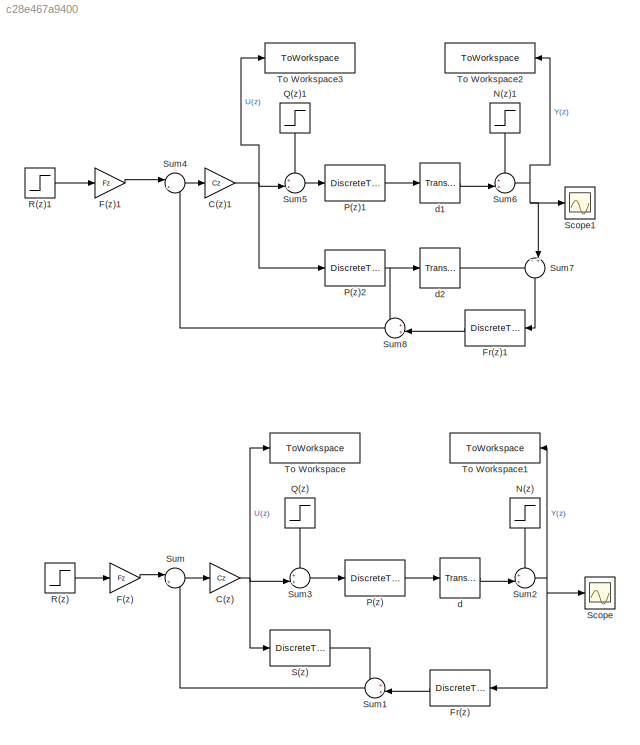
MODEL slx_c28e467a9400
KIND model
CONFIG AbsTol = auto
CONFIG EnableMultiTasking = off
CONFIG FixedStep = auto
CONFIG MaxStep = auto
CONFIG MinStep = auto
CONFIG RelTol = 1e-3
CONFIG SampleTimeConstraint = Unconstrained
CONFIG SolverName = VariableStepAuto
CONFIG StartTime = 0.0
CONFIG StopTime = tsim
BLOCK [Gain] C(z)
  Gain = Cz
  Multiplication = Matrix(K*u)
BLOCK [Gain] C(z)1
  Gain = Cz
  Multiplication = Matrix(K*u)
BLOCK [Gain] F(z)
  Gain = Fz
  Multiplication = Matrix(K*u)
BLOCK [Gain] F(z)1
  Gain = Fz
  Multiplication = Matrix(K*u)
BLOCK [DiscreteTransferFcn] Fr(z)
  Denominator = denFr
  InputPortMap = u0
  Numerator = numFr
BLOCK [DiscreteTransferFcn] Fr(z)1
  Denominator = denFr
  InputPortMap = u0
  Numerator = numFr
BLOCK [Step] N(z)
  After = -1
  NameLocation = left
  SampleTime = Ts
  Time = 600
BLOCK [Step] N(z)1
  After = -1
  NameLocation = left
  SampleTime = Ts
  Time = 600
BLOCK [DiscreteTransferFcn] P(z)
  Denominator = denGz
  InputPortMap = u0
  Numerator = numGz
BLOCK [DiscreteTransferFcn] P(z)1
  Denominator = denGz
  InputPortMap = u0
  Numerator = numGz
BLOCK [DiscreteTransferFcn] P(z)2
  Denominator = denGz
  InputPortMap = u0
  Numerator = numGz
BLOCK [Step] Q(z)
  After = -1
  NameLocation = left
  SampleTime = Ts
  Time = 200
BLOCK [Step] Q(z)1
  After = -1
  NameLocation = left
  SampleTime = Ts
  Time = 200
BLOCK [Step] R(z)
  After = 5
  SampleTime = Ts
  Time = 0
BLOCK [Step] R(z)1
  After = 5
  SampleTime = Ts
  Time = 0
BLOCK [DiscreteTransferFcn] S(z)
  Denominator = denSz
  InputPortMap = u0
  Numerator = numSz
BLOCK [Scope] Scope
  Floating = off
  NumInputPorts = 1
  ScopeSpecificationString = Simulink.scopes.TimeScopeBlockCfg('CurrentConfiguration', extmgr.ConfigurationSet(extmgr.Configuration('Core','General UI',true),extmgr.Configuration('Core','Source UI',true),extmgr.Configuration('Sources','WiredSimulink',true),extmgr.Configuration('Visuals','Time Domain',true,'SerializedDisplays',{struct('MinYLimReal','-0.73414','MaxYLimReal','6.60724','YLabelReal','','MinYLimMag','0.00000','MaxY...<+1355ch>
BLOCK [Scope] Scope1
  Floating = off
  NumInputPorts = 1
  ScopeSpecificationString = Simulink.scopes.TimeScopeBlockCfg('CurrentConfiguration', extmgr.ConfigurationSet(extmgr.Configuration('Core','General UI',true),extmgr.Configuration('Core','Source UI',true),extmgr.Configuration('Sources','WiredSimulink',true,'DataLoggingVariableName','ScopeData1'),extmgr.Configuration('Visuals','Time Domain',true,'SerializedDisplays',{struct('MinYLimReal','-0.73414','MaxYLimReal','6.60724','YLab...<+1394ch>
BLOCK [Sum] Sum
  Inputs = |+-
BLOCK [Sum] Sum1
  Inputs = ++|
  NameLocation = top
BLOCK [Sum] Sum2
  Inputs = ++|
  NameLocation = top
BLOCK [Sum] Sum3
  Inputs = ++|
  NameLocation = top
BLOCK [Sum] Sum4
  Inputs = |+-
BLOCK [Sum] Sum5
  Inputs = ++|
  NameLocation = top
BLOCK [Sum] Sum6
  Inputs = ++|
  NameLocation = top
BLOCK [Sum] Sum7
  Inputs = -+|
  NameLocation = left
BLOCK [Sum] Sum8
  Inputs = ++|
  NameLocation = top
BLOCK [ToWorkspace] To Workspace
  FixptAsFi = on
  MaxDataPoints = inf
  SampleTime = -1
  SaveFormat = Timeseries
  VariableName = U2
BLOCK [ToWorkspace] To Workspace1
  FixptAsFi = on
  MaxDataPoints = inf
  SampleTime = -1
  SaveFormat = Timeseries
  VariableName = Y2
BLOCK [ToWorkspace] To Workspace2
  FixptAsFi = on
  MaxDataPoints = inf
  SampleTime = -1
  SaveFormat = Timeseries
  VariableName = Y1
BLOCK [ToWorkspace] To Workspace3
  FixptAsFi = on
  MaxDataPoints = inf
  SampleTime = -1
  SaveFormat = Timeseries
  VariableName = U1
BLOCK [TransportDelay] d
  DelayTime = dn
BLOCK [TransportDelay] d1
  DelayTime = dn
BLOCK [TransportDelay] d2
  DelayTime = dn
NET C(z)1:1 -> P(z)2:1, Sum5:2, To Workspace3:1
NET C(z):1 -> S(z):1, Sum3:2, To Workspace:1
LINE F(z)1:1 -> Sum4:1
LINE F(z):1 -> Sum:1
LINE Fr(z)1:1 -> Sum8:2
LINE Fr(z):1 -> Sum1:2
LINE N(z)1:1 -> Sum6:1
LINE N(z):1 -> Sum2:1
LINE P(z)1:1 -> d1:1
NET P(z)2:1 -> Sum8:1, d2:1
LINE P(z):1 -> d:1
LINE Q(z)1:1 -> Sum5:1
LINE Q(z):1 -> Sum3:1
LINE R(z)1:1 -> F(z)1:1
LINE R(z):1 -> F(z):1
LINE S(z):1 -> Sum1:1
LINE Sum1:1 -> Sum:2
NET Sum2:1 -> Fr(z):1, Scope:1, To Workspace1:1
LINE Sum3:1 -> P(z):1
LINE Sum4:1 -> C(z)1:1
LINE Sum5:1 -> P(z)1:1
NET Sum6:1 -> Scope1:1, Sum7:2, To Workspace2:1
LINE Sum7:1 -> Fr(z)1:1
LINE Sum8:1 -> Sum4:2
LINE Sum:1 -> C(z):1
LINE d1:1 -> Sum6:2
LINE d2:1 -> Sum7:1
LINE d:1 -> Sum2:2
note: NET lines group one-source signal fan-out (src -> all destinations, sorted); 1:1 wires keep LINE
